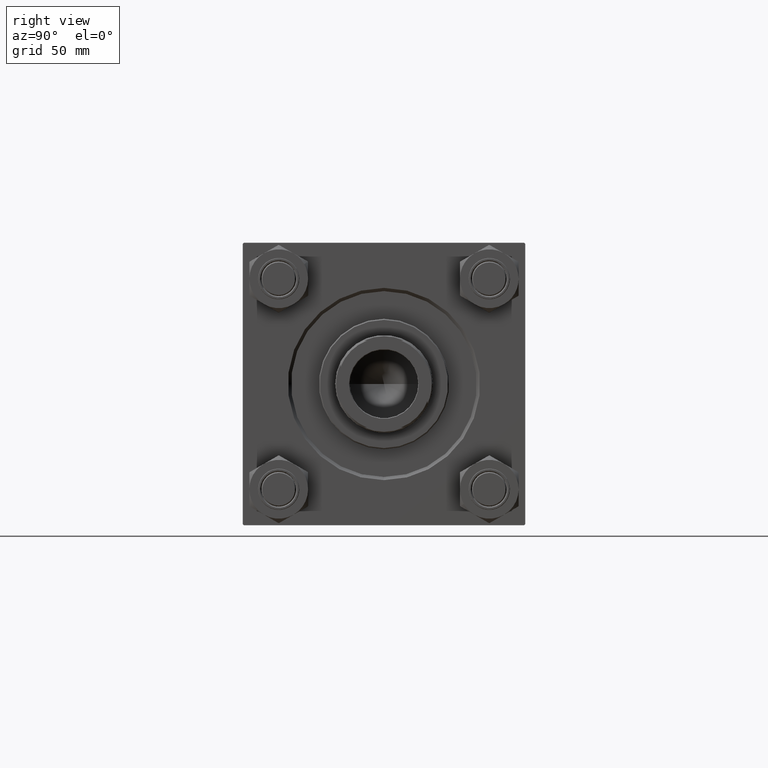
[diagram: clean part render]
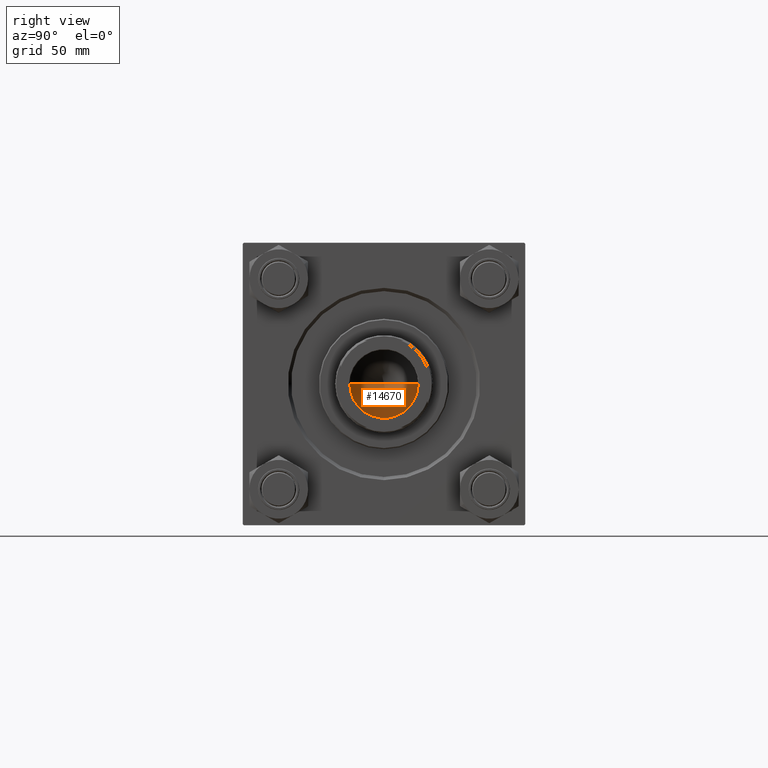
[diagram: same view with one face highlighted and labeled with its STEP entity id]
A machine part, right view. The second image highlights one B-rep face of the part: STEP entity #14670.
In plain terms, the highlighted conical surface has half-angle 59 deg.
Its self-contained STEP definition (entity closure, byte-faithful):
#1077 = CARTESIAN_POINT ( 'NONE',  ( -15.74999999999998934, 1.928818708657080161E-15, 123.0000000000000142 ) ) ;
#2343 = DIRECTION ( 'NONE',  ( 1.000000000000000000, 0.000000000000000000, 0.000000000000000000 ) ) ;
#6027 = VECTOR ( 'NONE', #32078, 1000.000000000000000 ) ;
#7733 = EDGE_CURVE ( 'NONE', #27165, #8906, #16210, .T. ) ;
#8906 = VERTEX_POINT ( 'NONE', #38415 ) ;
#10631 = DIRECTION ( 'NONE',  ( 1.000000000000000000, 0.000000000000000000, 0.000000000000000000 ) ) ;
#11663 = AXIS2_PLACEMENT_3D ( 'NONE', #33845, #45257, #2343 ) ;
#12557 = EDGE_CURVE ( 'NONE', #27165, #25714, #31580, .T. ) ;
#13035 = EDGE_CURVE ( 'NONE', #8906, #25714, #28727, .T. ) ;
#14670 = ADVANCED_FACE ( 'NONE', ( #40952 ), #41671, .F. ) ;
#15463 = DIRECTION ( 'NONE',  ( 0.8571673007021115565, 0.000000000000000000, 0.5150380749100554878 ) ) ;
#16210 = LINE ( 'NONE', #39078, #18063 ) ;
#17001 = ORIENTED_EDGE ( 'NONE', *, *, #12557, .F. ) ;
#18063 = VECTOR ( 'NONE', #15463, 1000.000000000000000 ) ;
#23805 = ORIENTED_EDGE ( 'NONE', *, *, #13035, .T. ) ;
#25714 = VERTEX_POINT ( 'NONE', #46976 ) ;
#26370 = CARTESIAN_POINT ( 'NONE',  ( 0.000000000000000000, 0.000000000000000000, 123.0000000000000142 ) ) ;
#27165 = VERTEX_POINT ( 'NONE', #43804 ) ;
#28727 = CIRCLE ( 'NONE', #37688, 15.74999999999998934 ) ;
#31580 = LINE ( 'NONE', #1077, #6027 ) ;
#32078 = DIRECTION ( 'NONE',  ( -0.8571673007021115565, 1.049727191138617710E-16, 0.5150380749100554878 ) ) ;
#33845 = CARTESIAN_POINT ( 'NONE',  ( 0.000000000000000000, 0.000000000000000000, 123.0000000000000142 ) ) ;
#37688 = AXIS2_PLACEMENT_3D ( 'NONE', #26370, #38060, #10631 ) ;
#38060 = DIRECTION ( 'NONE',  ( -0.000000000000000000, -0.000000000000000000, 1.000000000000000000 ) ) ;
#38415 = CARTESIAN_POINT ( 'NONE',  ( 15.74999999999998934, 0.000000000000000000, 123.0000000000000142 ) ) ;
#39078 = CARTESIAN_POINT ( 'NONE',  ( 15.74999999999998934, 0.000000000000000000, 123.0000000000000142 ) ) ;
#40348 = ORIENTED_EDGE ( 'NONE', *, *, #7733, .T. ) ;
#40952 = FACE_OUTER_BOUND ( 'NONE', #48783, .T. ) ;
#41671 = CONICAL_SURFACE ( 'NONE', #11663, 15.74999999999998934, 1.029744258676652979 ) ;
#43804 = CARTESIAN_POINT ( 'NONE',  ( -1.584115414415908206E-14, 0.000000000000000000, 113.5364452503159214 ) ) ;
#45257 = DIRECTION ( 'NONE',  ( -0.000000000000000000, -0.000000000000000000, 1.000000000000000000 ) ) ;
#46976 = CARTESIAN_POINT ( 'NONE',  ( -15.74999999999998934, 1.928818708657080161E-15, 123.0000000000000142 ) ) ;
#48783 = EDGE_LOOP ( 'NONE', ( #17001, #40348, #23805 ) ) ;